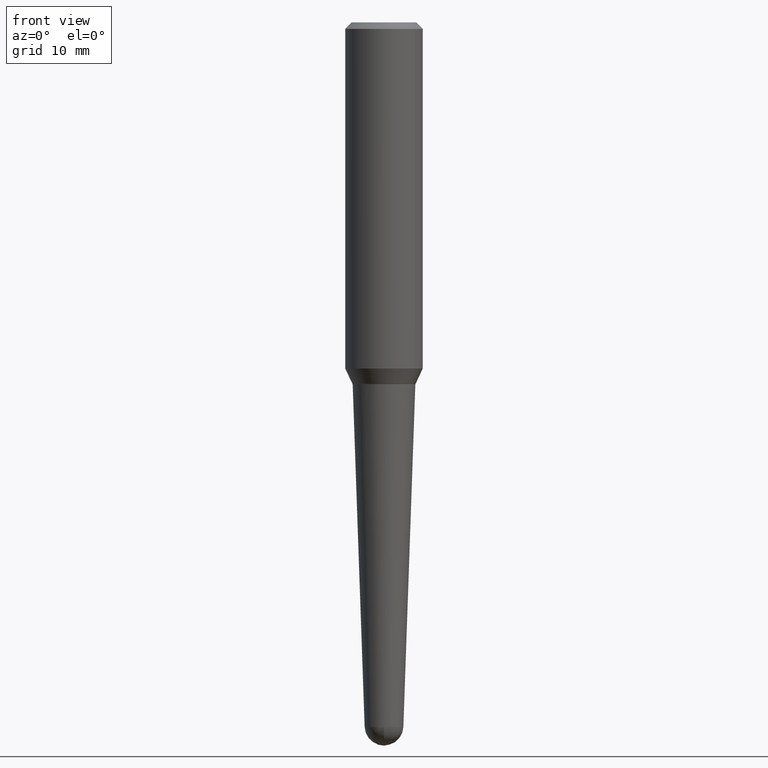
[diagram: clean part render]
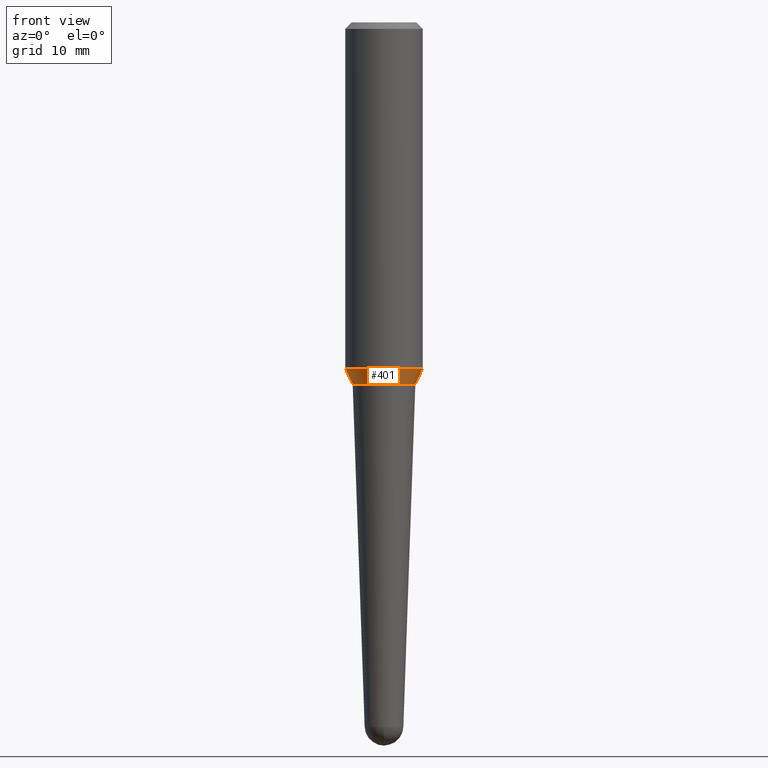
[diagram: same view with one face highlighted and labeled with its STEP entity id]
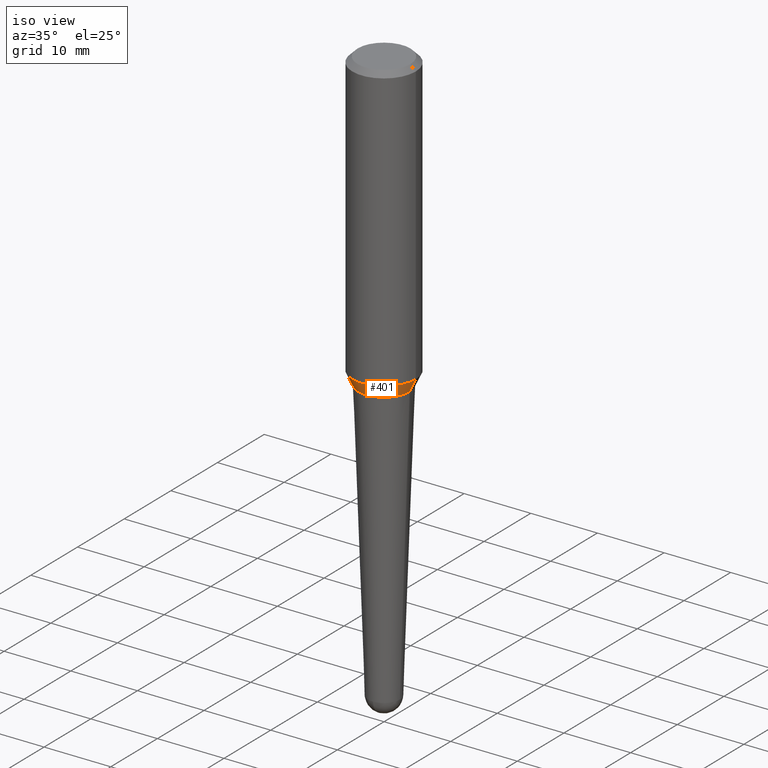
[diagram: same view with one face highlighted and labeled with its STEP entity id]
A machine part, front view. The second image highlights one B-rep face of the part: STEP entity #401.
A second angle (iso view) of the same face is appended — the face is thin or edge-on in the first view.
In plain terms, the highlighted conical surface has half-angle 25 deg.
Its self-contained STEP definition (entity closure, byte-faithful):
#7 = CARTESIAN_POINT ( 'NONE',  ( 0.1526929536874624127, -7.174595799051309797E-15, -1.749500000000000055 ) ) ;
#11 = EDGE_CURVE ( 'NONE', #385, #171, #181, .T. ) ;
#12 = ORIENTED_EDGE ( 'NONE', *, *, #108, .F. ) ;
#17 = CARTESIAN_POINT ( 'NONE',  ( 4.278347676420896243E-29, -6.108346602306083167E-15, -1.749500000000000055 ) ) ;
#20 = DIRECTION ( 'NONE',  ( -2.445468806185136597E-29, 3.491481338843145583E-15, 1.000000000000000000 ) ) ;
#68 = CONICAL_SURFACE ( 'NONE', #126, 0.1526929536874624127, 0.4363323129985736681 ) ;
#83 = DIRECTION ( 'NONE',  ( 0.4226182617406915587, 2.132291770428088249E-16, 0.9063077870366536004 ) ) ;
#91 = DIRECTION ( 'NONE',  ( -2.445468806185136597E-29, 3.491481338843145583E-15, 1.000000000000000000 ) ) ;
#92 = AXIS2_PLACEMENT_3D ( 'NONE', #17, #20, #296 ) ;
#108 = EDGE_CURVE ( 'NONE', #171, #437, #368, .T. ) ;
#116 = CARTESIAN_POINT ( 'NONE',  ( -0.1526929536874624127, -5.023397911862285161E-15, -1.749500000000000055 ) ) ;
#126 = AXIS2_PLACEMENT_3D ( 'NONE', #455, #172, #321 ) ;
#153 = EDGE_CURVE ( 'NONE', #385, #434, #192, .T. ) ;
#171 = VERTEX_POINT ( 'NONE', #336 ) ;
#172 = DIRECTION ( 'NONE',  ( -2.445468806185136597E-29, 3.491481338843145583E-15, 1.000000000000000000 ) ) ;
#181 = LINE ( 'NONE', #116, #198 ) ;
#183 = LINE ( 'NONE', #7, #264 ) ;
#190 = CARTESIAN_POINT ( 'NONE',  ( 4.095808220968802460E-29, -5.847728637888946996E-15, -1.674856048300264355 ) ) ;
#192 = CIRCLE ( 'NONE', #92, 0.1526929536874624127 ) ;
#198 = VECTOR ( 'NONE', #257, 39.37007874015748854 ) ;
#257 = DIRECTION ( 'NONE',  ( -0.4226182617406915587, 6.167240084480793435E-15, 0.9063077870366536004 ) ) ;
#259 = CARTESIAN_POINT ( 'NONE',  ( 0.1526929536874624127, -7.174595799051311375E-15, -1.749500000000000055 ) ) ;
#264 = VECTOR ( 'NONE', #83, 39.37007874015748854 ) ;
#288 = CARTESIAN_POINT ( 'NONE',  ( 0.1875000000000002220, -7.157034139955123582E-15, -1.674856048300264355 ) ) ;
#292 = AXIS2_PLACEMENT_3D ( 'NONE', #190, #91, #442 ) ;
#296 = DIRECTION ( 'NONE',  ( 1.000000000000000000, -6.982962677686265133E-15, 0.000000000000000000 ) ) ;
#303 = ORIENTED_EDGE ( 'NONE', *, *, #11, .F. ) ;
#310 = ORIENTED_EDGE ( 'NONE', *, *, #407, .T. ) ;
#319 = CARTESIAN_POINT ( 'NONE',  ( -0.1526929536874624127, -5.023397911862285161E-15, -1.749500000000000055 ) ) ;
#321 = DIRECTION ( 'NONE',  ( 1.000000000000000000, -6.982962677686265133E-15, 0.000000000000000000 ) ) ;
#336 = CARTESIAN_POINT ( 'NONE',  ( -0.1875000000000002220, -4.515461008338757570E-15, -1.674856048300264355 ) ) ;
#345 = FACE_OUTER_BOUND ( 'NONE', #396, .T. ) ;
#368 = CIRCLE ( 'NONE', #292, 0.1875000000000002220 ) ;
#385 = VERTEX_POINT ( 'NONE', #319 ) ;
#396 = EDGE_LOOP ( 'NONE', ( #303, #458, #310, #12 ) ) ;
#401 = ADVANCED_FACE ( 'NONE', ( #345 ), #68, .T. ) ;
#407 = EDGE_CURVE ( 'NONE', #434, #437, #183, .T. ) ;
#434 = VERTEX_POINT ( 'NONE', #259 ) ;
#437 = VERTEX_POINT ( 'NONE', #288 ) ;
#442 = DIRECTION ( 'NONE',  ( 1.000000000000000000, -6.982962677686265133E-15, 0.000000000000000000 ) ) ;
#455 = CARTESIAN_POINT ( 'NONE',  ( 4.278347676420896243E-29, -6.108346602306083167E-15, -1.749500000000000055 ) ) ;
#458 = ORIENTED_EDGE ( 'NONE', *, *, #153, .T. ) ;